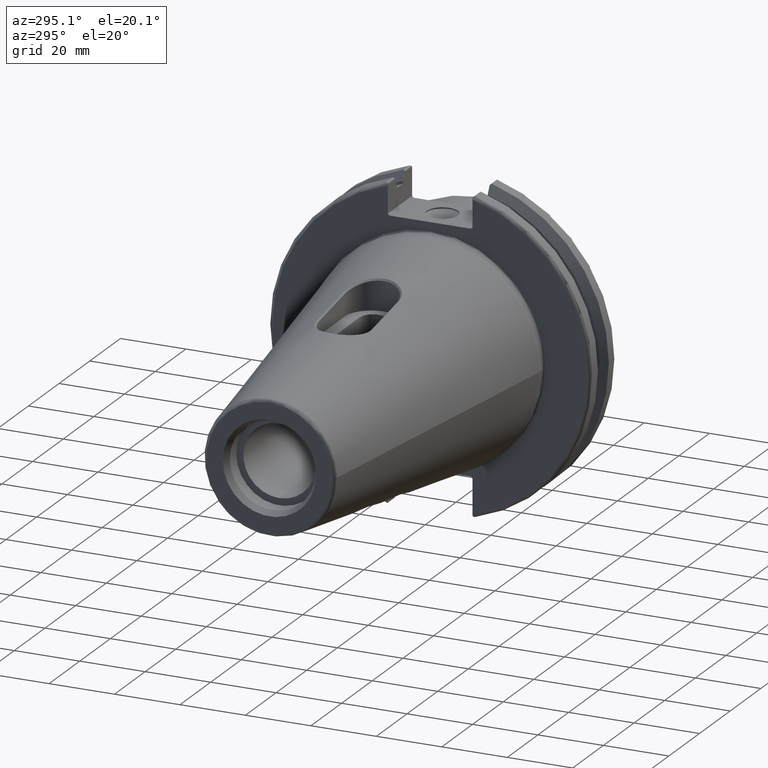
[diagram: clean part render]
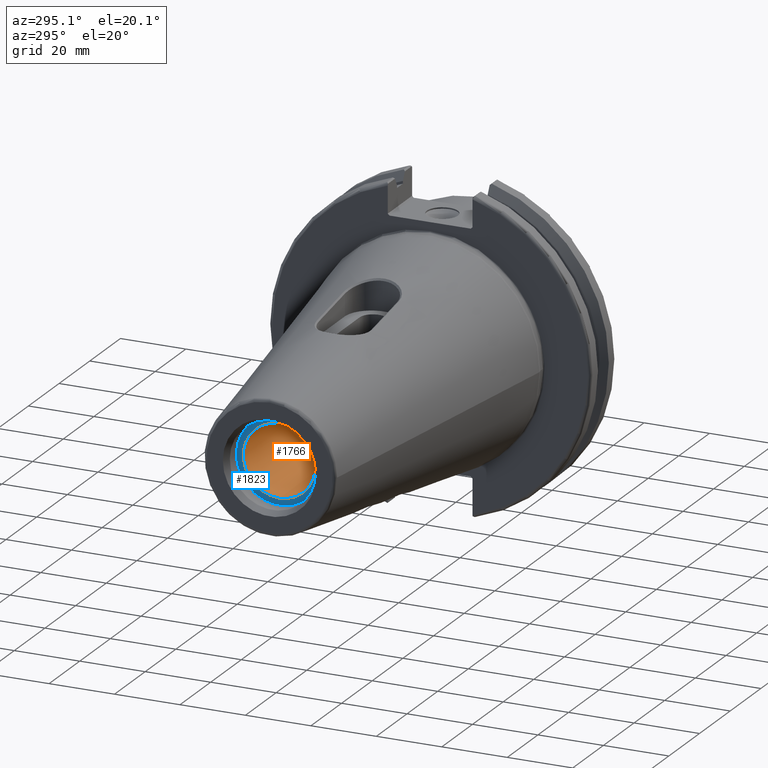
[diagram: same view with the hole feature highlighted: cylindrical wall and planar end face, labeled with their STEP entity ids]
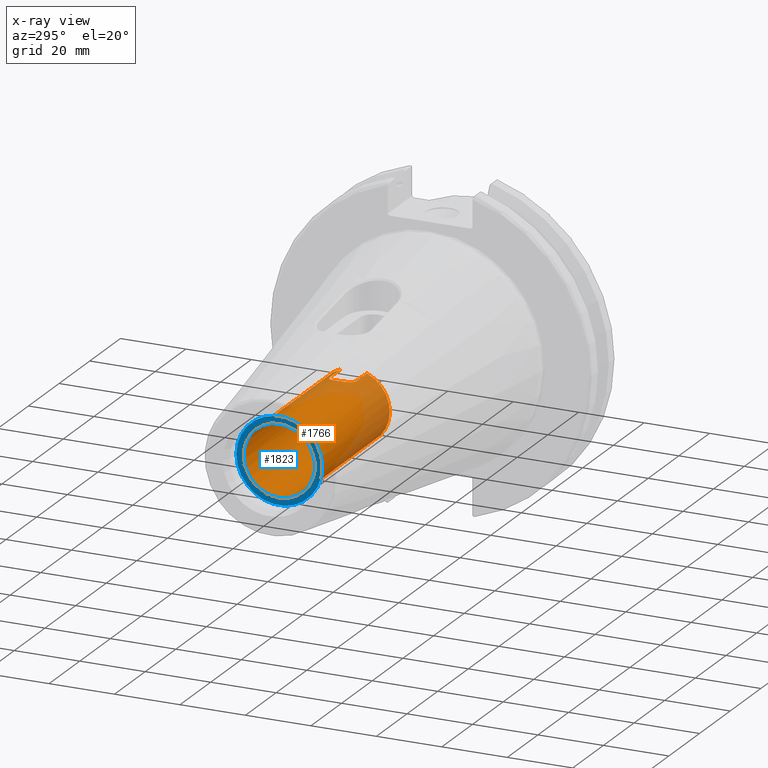
[diagram: x-ray of the same camera — body ghosted, the hole faces saturated]
A machine part, auxiliary view. The highlighted faces form one hole feature of diameter 21.971 mm: the cylindrical wall (entity #1766, orange) and its adjacent planar end face (entity #1823, blue) — they share a circular edge in the B-rep.
The next image is the same camera in x-ray (body ghosted, the hole faces saturated) — the bore reads through the body.
Wall:
#78=CIRCLE('',#1886,10.9855);
#79=CIRCLE('',#1887,10.9855);
#80=CIRCLE('',#1888,10.9855);
#147=CYLINDRICAL_SURFACE('',#1885,10.9855);
#238=FACE_OUTER_BOUND('',#343,.T.);
#343=EDGE_LOOP('',(#1361,#1362,#1363,#1364,#1365,#1366,#1367,#1368,#1369,
#1370,#1371,#1372));
#450=B_SPLINE_CURVE_WITH_KNOTS('',3,(#3352,#3353,#3354,#3355,#3356,#3357,
#3358,#3359,#3360,#3361),.UNSPECIFIED.,.F.,.F.,(4,2,2,2,4),(-0.601037606548378,
-0.450826282334263,-0.300614958120148,-0.150307479060074,0.),
 .UNSPECIFIED.);
#451=B_SPLINE_CURVE_WITH_KNOTS('',3,(#3362,#3363,#3364,#3365,#3366,#3367,
#3368,#3369,#3370,#3371),.UNSPECIFIED.,.F.,.F.,(4,2,2,2,4),(-1.20207521309676,
-1.05176773403668,-0.901460254976608,-0.751248930762493,-0.601037606548378),
 .UNSPECIFIED.);
#452=B_SPLINE_CURVE_WITH_KNOTS('',3,(#3387,#3388,#3389,#3390,#3391,#3392,
#3393,#3394,#3395,#3396,#3397,#3398,#3399,#3400,#3401,#3402,#3403,#3404),
 .UNSPECIFIED.,.F.,.F.,(4,2,2,2,2,2,2,2,4),(0.,0.150307479060074,0.300614958120148,
0.450826282334263,0.601037606548378,0.751248930762493,0.901460254976608,
1.05176773403668,1.20207521309676),.UNSPECIFIED.);
#492=LINE('',#2930,#617);
#515=LINE('',#3313,#640);
#519=LINE('',#3340,#644);
#524=LINE('',#3376,#649);
#528=LINE('',#3408,#653);
#617=VECTOR('',#2063,10.);
#640=VECTOR('',#2108,10.);
#644=VECTOR('',#2116,10.);
#649=VECTOR('',#2125,10.);
#653=VECTOR('',#2135,10.9855);
#760=VERTEX_POINT('',#2925);
#761=VERTEX_POINT('',#2929);
#783=VERTEX_POINT('',#3308);
#784=VERTEX_POINT('',#3312);
#786=VERTEX_POINT('',#3337);
#787=VERTEX_POINT('',#3339);
#791=VERTEX_POINT('',#3351);
#792=VERTEX_POINT('',#3373);
#793=VERTEX_POINT('',#3375);
#797=VERTEX_POINT('',#3406);
#952=EDGE_CURVE('',#761,#760,#492,.T.);
#989=EDGE_CURVE('',#784,#783,#515,.T.);
#994=EDGE_CURVE('',#787,#786,#519,.T.);
#999=EDGE_CURVE('',#791,#761,#450,.T.);
#1000=EDGE_CURVE('',#786,#791,#451,.T.);
#1002=EDGE_CURVE('',#793,#792,#524,.T.);
#1007=EDGE_CURVE('',#792,#784,#452,.T.);
#1008=EDGE_CURVE('',#797,#797,#78,.T.);
#1009=EDGE_CURVE('',#797,#791,#528,.T.);
#1010=EDGE_CURVE('',#793,#760,#79,.T.);
#1011=EDGE_CURVE('',#787,#783,#80,.T.);
#1361=ORIENTED_EDGE('',*,*,#1008,.F.);
#1362=ORIENTED_EDGE('',*,*,#1009,.T.);
#1363=ORIENTED_EDGE('',*,*,#999,.T.);
#1364=ORIENTED_EDGE('',*,*,#952,.T.);
#1365=ORIENTED_EDGE('',*,*,#1010,.F.);
#1366=ORIENTED_EDGE('',*,*,#1002,.T.);
#1367=ORIENTED_EDGE('',*,*,#1007,.T.);
#1368=ORIENTED_EDGE('',*,*,#989,.T.);
#1369=ORIENTED_EDGE('',*,*,#1011,.F.);
#1370=ORIENTED_EDGE('',*,*,#994,.T.);
#1371=ORIENTED_EDGE('',*,*,#1000,.T.);
#1372=ORIENTED_EDGE('',*,*,#1009,.F.);
#1766=ADVANCED_FACE('',(#238),#147,.F.);
#1885=AXIS2_PLACEMENT_3D('',#3405,#2131,#2132);
#1886=AXIS2_PLACEMENT_3D('',#3407,#2133,#2134);
#1887=AXIS2_PLACEMENT_3D('',#3409,#2136,#2137);
#1888=AXIS2_PLACEMENT_3D('',#3410,#2138,#2139);
#2063=DIRECTION('',(1.,0.,0.));
#2108=DIRECTION('',(1.,0.,0.));
#2116=DIRECTION('',(-1.,0.,0.));
#2125=DIRECTION('',(-1.,0.,0.));
#2131=DIRECTION('center_axis',(-1.,0.,0.));
#2132=DIRECTION('ref_axis',(0.,0.,1.));
#2133=DIRECTION('center_axis',(1.,0.,0.));
#2134=DIRECTION('ref_axis',(0.,0.,1.));
#2135=DIRECTION('',(1.,0.,0.));
#2136=DIRECTION('center_axis',(-1.,0.,0.));
#2137=DIRECTION('ref_axis',(0.,0.,1.));
#2138=DIRECTION('center_axis',(-1.,0.,0.));
#2139=DIRECTION('ref_axis',(0.,0.,1.));
#2925=CARTESIAN_POINT('',(-46.6,3.95000000000001,-10.2507907134035));
#2929=CARTESIAN_POINT('',(-53.3,3.95000000000001,-10.2507907134035));
#2930=CARTESIAN_POINT('',(-74.1,3.95000000000002,-10.2507907134035));
#3308=CARTESIAN_POINT('',(-46.6,-3.95,10.2507907134035));
#3312=CARTESIAN_POINT('',(-53.3,-3.95,10.2507907134035));
#3313=CARTESIAN_POINT('',(-74.1,-3.95000000000001,10.2507907134035));
#3337=CARTESIAN_POINT('',(-53.3,-3.95,-10.2507907134035));
#3339=CARTESIAN_POINT('',(-46.6,-3.95,-10.2507907134035));
#3340=CARTESIAN_POINT('',(-74.1,-3.95000000000001,-10.2507907134035));
#3351=CARTESIAN_POINT('',(-57.25,7.15110910179783E-16,-10.9855));
#3352=CARTESIAN_POINT('Ctrl Pts',(-57.25,2.77555756156289E-15,-10.9855));
#3353=CARTESIAN_POINT('Ctrl Pts',(-57.25,0.500704414047053,-10.9855));
#3354=CARTESIAN_POINT('Ctrl Pts',(-57.1490230340928,1.03180302364533,-10.947939160051));
#3355=CARTESIAN_POINT('Ctrl Pts',(-56.7444850561766,2.00377595526062,-10.8123480913348));
#3356=CARTESIAN_POINT('Ctrl Pts',(-56.4411601629787,2.44498340839501,-10.7160069883569));
#3357=CARTESIAN_POINT('Ctrl Pts',(-55.7447605864175,3.1413829849562,-10.532930669143));
#3358=CARTESIAN_POINT('Ctrl Pts',(-55.3036402863323,3.44453725232018,-10.4337108653291));
#3359=CARTESIAN_POINT('Ctrl Pts',(-54.3319964541293,3.84894679715638,-10.2913930287427));
#3360=CARTESIAN_POINT('Ctrl Pts',(-53.8010249302003,3.95000000000001,-10.2507907134035));
#3361=CARTESIAN_POINT('Ctrl Pts',(-53.3,3.95000000000001,-10.2507907134035));
#3362=CARTESIAN_POINT('Ctrl Pts',(-53.3,-3.95,-10.2507907134035));
#3363=CARTESIAN_POINT('Ctrl Pts',(-53.8010249302003,-3.95,-10.2507907134035));
#3364=CARTESIAN_POINT('Ctrl Pts',(-54.3319964541293,-3.84894679715637,-10.2913930287427));
#3365=CARTESIAN_POINT('Ctrl Pts',(-55.3036402863323,-3.44453725232017,-10.4337108653291));
#3366=CARTESIAN_POINT('Ctrl Pts',(-55.7447605864175,-3.14138298495619,-10.532930669143));
#3367=CARTESIAN_POINT('Ctrl Pts',(-56.4411601629787,-2.444983408395,-10.7160069883569));
#3368=CARTESIAN_POINT('Ctrl Pts',(-56.7444850561766,-2.00377595526062,-10.8123480913348));
#3369=CARTESIAN_POINT('Ctrl Pts',(-57.1490230340928,-1.03180302364533,-10.947939160051));
#3370=CARTESIAN_POINT('Ctrl Pts',(-57.25,-0.500704414047047,-10.9855));
#3371=CARTESIAN_POINT('Ctrl Pts',(-57.25,2.63677968348475E-15,-10.9855));
#3373=CARTESIAN_POINT('',(-53.3,3.95000000000001,10.2507907134035));
#3375=CARTESIAN_POINT('',(-46.6,3.95000000000001,10.2507907134035));
#3376=CARTESIAN_POINT('',(-74.1,3.95000000000002,10.2507907134035));
#3387=CARTESIAN_POINT('Ctrl Pts',(-53.3,3.95000000000001,10.2507907134035));
#3388=CARTESIAN_POINT('Ctrl Pts',(-53.8010249302003,3.95000000000001,10.2507907134035));
#3389=CARTESIAN_POINT('Ctrl Pts',(-54.3319964541293,3.84894679715638,10.2913930287427));
#3390=CARTESIAN_POINT('Ctrl Pts',(-55.3036402863323,3.44453725232018,10.4337108653291));
#3391=CARTESIAN_POINT('Ctrl Pts',(-55.7447605864175,3.1413829849562,10.532930669143));
#3392=CARTESIAN_POINT('Ctrl Pts',(-56.4411601629787,2.44498340839501,10.7160069883569));
#3393=CARTESIAN_POINT('Ctrl Pts',(-56.7444850561766,2.00377595526062,10.8123480913348));
#3394=CARTESIAN_POINT('Ctrl Pts',(-57.1490230340928,1.03180302364533,10.947939160051));
#3395=CARTESIAN_POINT('Ctrl Pts',(-57.25,0.500704414047052,10.9855));
#3396=CARTESIAN_POINT('Ctrl Pts',(-57.25,-0.500704414047047,10.9855));
#3397=CARTESIAN_POINT('Ctrl Pts',(-57.1490230340928,-1.03180302364533,10.947939160051));
#3398=CARTESIAN_POINT('Ctrl Pts',(-56.7444850561766,-2.00377595526062,10.8123480913348));
#3399=CARTESIAN_POINT('Ctrl Pts',(-56.4411601629787,-2.444983408395,10.7160069883569));
#3400=CARTESIAN_POINT('Ctrl Pts',(-55.7447605864175,-3.14138298495619,10.532930669143));
#3401=CARTESIAN_POINT('Ctrl Pts',(-55.3036402863323,-3.44453725232017,10.4337108653291));
#3402=CARTESIAN_POINT('Ctrl Pts',(-54.3319964541293,-3.84894679715637,10.2913930287427));
#3403=CARTESIAN_POINT('Ctrl Pts',(-53.8010249302003,-3.95,10.2507907134035));
#3404=CARTESIAN_POINT('Ctrl Pts',(-53.3,-3.95,10.2507907134035));
#3405=CARTESIAN_POINT('Origin',(-74.1,0.,0.));
#3406=CARTESIAN_POINT('',(-95.25,1.34533574120333E-15,-10.9855));
#3407=CARTESIAN_POINT('Origin',(-95.25,0.,0.));
#3408=CARTESIAN_POINT('',(-74.1,-1.34533574120333E-15,-10.9855));
#3409=CARTESIAN_POINT('Origin',(-46.6,0.,0.));
#3410=CARTESIAN_POINT('Origin',(-46.6,0.,0.));
End face:
#55=FACE_BOUND('',#407,.T.);
#78=CIRCLE('',#1886,10.9855);
#133=CIRCLE('',#1998,13.1);
#200=PLANE('',#1997);
#295=FACE_OUTER_BOUND('',#406,.T.);
#406=EDGE_LOOP('',(#1677));
#407=EDGE_LOOP('',(#1678));
#797=VERTEX_POINT('',#3406);
#897=VERTEX_POINT('',#3855);
#1008=EDGE_CURVE('',#797,#797,#78,.T.);
#1162=EDGE_CURVE('',#897,#897,#133,.T.);
#1677=ORIENTED_EDGE('',*,*,#1162,.F.);
#1678=ORIENTED_EDGE('',*,*,#1008,.T.);
#1823=ADVANCED_FACE('',(#295,#55),#200,.T.);
#1886=AXIS2_PLACEMENT_3D('',#3407,#2133,#2134);
#1997=AXIS2_PLACEMENT_3D('',#3854,#2420,#2421);
#1998=AXIS2_PLACEMENT_3D('',#3856,#2422,#2423);
#2133=DIRECTION('center_axis',(1.,0.,0.));
#2134=DIRECTION('ref_axis',(0.,0.,1.));
#2420=DIRECTION('center_axis',(-1.,0.,0.));
#2421=DIRECTION('ref_axis',(0.,0.,1.));
#2422=DIRECTION('center_axis',(1.,0.,0.));
#2423=DIRECTION('ref_axis',(0.,0.,-1.));
#3406=CARTESIAN_POINT('',(-95.25,1.34533574120333E-15,-10.9855));
#3407=CARTESIAN_POINT('Origin',(-95.25,0.,0.));
#3854=CARTESIAN_POINT('Origin',(-95.25,13.1,0.));
#3855=CARTESIAN_POINT('',(-95.25,-13.1,-1.60428730688303E-15));
#3856=CARTESIAN_POINT('Origin',(-95.25,0.,0.));